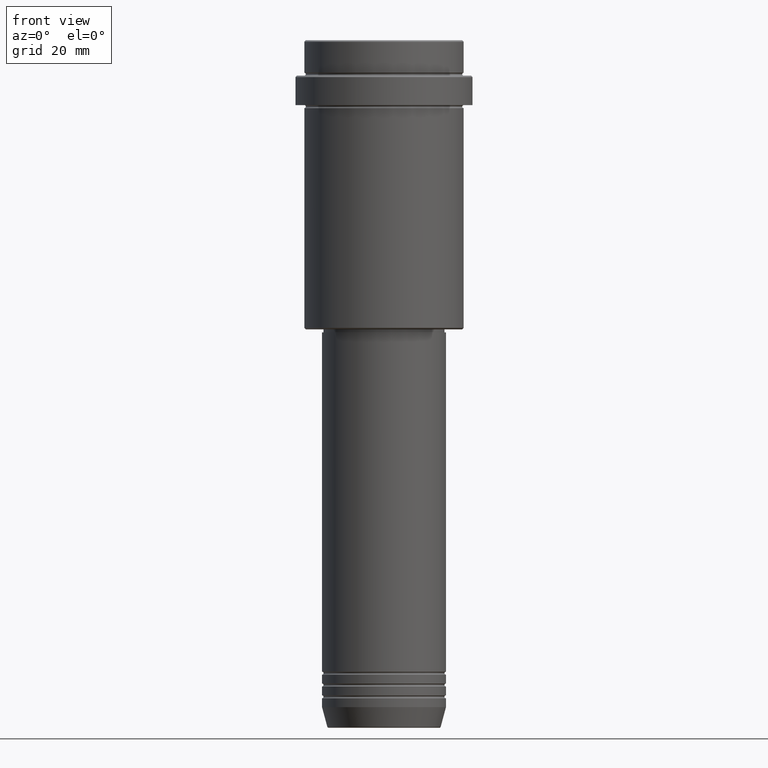
[diagram: clean part render]
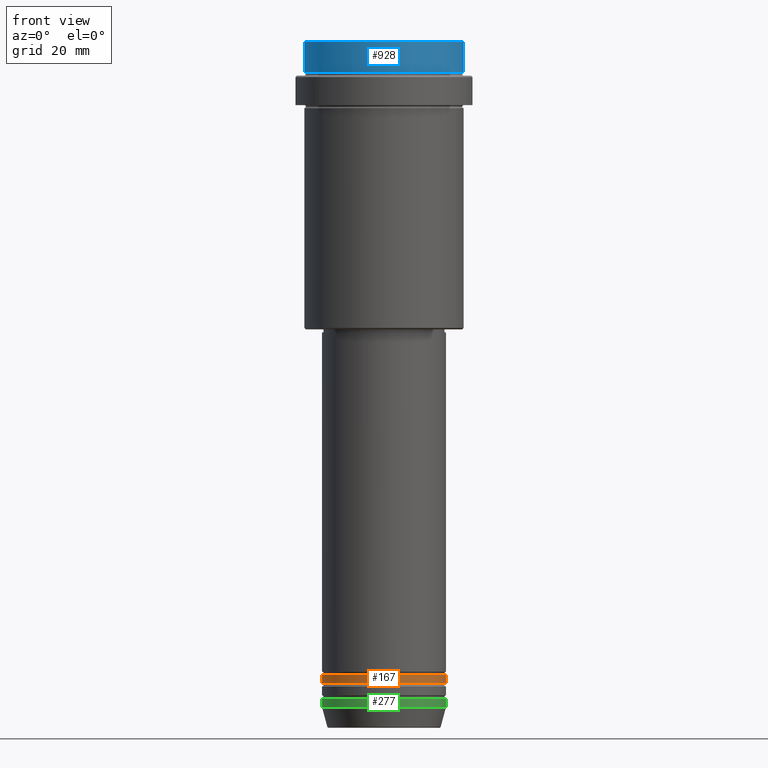
[diagram: same view with three faces highlighted in distinct colors, each labeled with its STEP entity id]
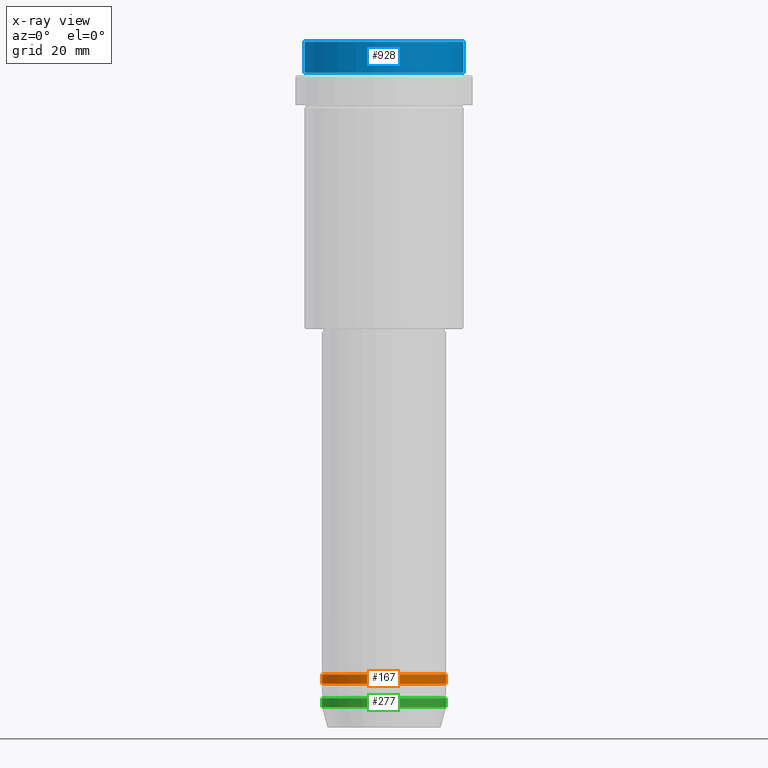
[diagram: x-ray of the same camera — body ghosted, the three highlighted faces saturated]
A machine part, front view with three faces highlighted in distinct colors.
The next image is the same camera in x-ray (body ghosted, the three faces saturated) — at least one of them is partly hidden behind the body in this view.
Their STEP definitions:

[orange] entity #167 — the highlighted cylindrical surface (partial cylindrical patch) has radius 21 mm, axis along (-0, -0, 1).
#108 = AXIS2_PLACEMENT_3D ( 'NONE', #395, #1286, #1058 ) ;
#167 = ADVANCED_FACE ( 'NONE', ( #408 ), #1376, .T. ) ;
#195 = CARTESIAN_POINT ( 'NONE',  ( 21.00000000000000000, 0.000000000000000000, -217.9999999999998579 ) ) ;
#224 = CARTESIAN_POINT ( 'NONE',  ( -21.00000000000000000, 2.571758278209441661E-15, 0.000000000000000000 ) ) ;
#245 = DIRECTION ( 'NONE',  ( -0.000000000000000000, -0.000000000000000000, 1.000000000000000000 ) ) ;
#325 = CARTESIAN_POINT ( 'NONE',  ( -21.00000000000000000, 2.571758278209441661E-15, -217.9999999999998579 ) ) ;
#345 = VECTOR ( 'NONE', #708, 1000.000000000000000 ) ;
#382 = ORIENTED_EDGE ( 'NONE', *, *, #803, .F. ) ;
#395 = CARTESIAN_POINT ( 'NONE',  ( 0.000000000000000000, 0.000000000000000000, 0.000000000000000000 ) ) ;
#408 = FACE_OUTER_BOUND ( 'NONE', #437, .T. ) ;
#424 = CARTESIAN_POINT ( 'NONE',  ( -21.00000000000000000, 2.571758278209441661E-15, -214.9999999999998579 ) ) ;
#437 = EDGE_LOOP ( 'NONE', ( #382, #1122, #902, #737 ) ) ;
#440 = LINE ( 'NONE', #224, #783 ) ;
#553 = CIRCLE ( 'NONE', #1401, 21.00000000000000000 ) ;
#598 = LINE ( 'NONE', #937, #345 ) ;
#670 = VERTEX_POINT ( 'NONE', #325 ) ;
#672 = VERTEX_POINT ( 'NONE', #767 ) ;
#708 = DIRECTION ( 'NONE',  ( -0.000000000000000000, -0.000000000000000000, 1.000000000000000000 ) ) ;
#737 = ORIENTED_EDGE ( 'NONE', *, *, #1033, .F. ) ;
#763 = CIRCLE ( 'NONE', #1235, 21.00000000000000000 ) ;
#767 = CARTESIAN_POINT ( 'NONE',  ( 21.00000000000000000, 0.000000000000000000, -214.9999999999998579 ) ) ;
#783 = VECTOR ( 'NONE', #245, 1000.000000000000000 ) ;
#803 = EDGE_CURVE ( 'NONE', #670, #1009, #440, .T. ) ;
#866 = DIRECTION ( 'NONE',  ( -0.000000000000000000, -0.000000000000000000, 1.000000000000000000 ) ) ;
#874 = DIRECTION ( 'NONE',  ( 1.000000000000000000, 0.000000000000000000, 0.000000000000000000 ) ) ;
#902 = ORIENTED_EDGE ( 'NONE', *, *, #1331, .T. ) ;
#937 = CARTESIAN_POINT ( 'NONE',  ( 21.00000000000000000, 0.000000000000000000, 0.000000000000000000 ) ) ;
#982 = DIRECTION ( 'NONE',  ( 1.000000000000000000, 0.000000000000000000, 0.000000000000000000 ) ) ;
#1009 = VERTEX_POINT ( 'NONE', #424 ) ;
#1033 = EDGE_CURVE ( 'NONE', #1009, #672, #553, .T. ) ;
#1053 = VERTEX_POINT ( 'NONE', #195 ) ;
#1058 = DIRECTION ( 'NONE',  ( 1.000000000000000000, 0.000000000000000000, 0.000000000000000000 ) ) ;
#1122 = ORIENTED_EDGE ( 'NONE', *, *, #1271, .T. ) ;
#1228 = CARTESIAN_POINT ( 'NONE',  ( 0.000000000000000000, 0.000000000000000000, -217.9999999999998579 ) ) ;
#1235 = AXIS2_PLACEMENT_3D ( 'NONE', #1228, #1318, #874 ) ;
#1271 = EDGE_CURVE ( 'NONE', #670, #1053, #763, .T. ) ;
#1286 = DIRECTION ( 'NONE',  ( -0.000000000000000000, -0.000000000000000000, 1.000000000000000000 ) ) ;
#1318 = DIRECTION ( 'NONE',  ( -0.000000000000000000, -0.000000000000000000, 1.000000000000000000 ) ) ;
#1331 = EDGE_CURVE ( 'NONE', #1053, #672, #598, .T. ) ;
#1376 = CYLINDRICAL_SURFACE ( 'NONE', #108, 21.00000000000000000 ) ;
#1401 = AXIS2_PLACEMENT_3D ( 'NONE', #1416, #866, #982 ) ;
#1416 = CARTESIAN_POINT ( 'NONE',  ( 0.000000000000000000, 0.000000000000000000, -214.9999999999998579 ) ) ;

[blue] entity #928 — the highlighted cylindrical surface (partial cylindrical patch) has radius 27 mm, axis along (-0, -0, 1).
#3 = CIRCLE ( 'NONE', #600, 26.99999999999999645 ) ;
#95 = DIRECTION ( 'NONE',  ( -0.000000000000000000, -0.000000000000000000, 1.000000000000000000 ) ) ;
#246 = CARTESIAN_POINT ( 'NONE',  ( 26.99999999999999645, 0.000000000000000000, -11.00000000000000178 ) ) ;
#263 = DIRECTION ( 'NONE',  ( -0.000000000000000000, -0.000000000000000000, 1.000000000000000000 ) ) ;
#340 = AXIS2_PLACEMENT_3D ( 'NONE', #706, #263, #398 ) ;
#355 = LINE ( 'NONE', #685, #1319 ) ;
#384 = ORIENTED_EDGE ( 'NONE', *, *, #776, .T. ) ;
#398 = DIRECTION ( 'NONE',  ( 1.000000000000000000, 0.000000000000000000, 0.000000000000000000 ) ) ;
#402 = EDGE_LOOP ( 'NONE', ( #750, #648, #833, #384 ) ) ;
#432 = DIRECTION ( 'NONE',  ( 1.000000000000000000, 0.000000000000000000, 0.000000000000000000 ) ) ;
#491 = DIRECTION ( 'NONE',  ( -0.000000000000000000, -0.000000000000000000, 1.000000000000000000 ) ) ;
#508 = DIRECTION ( 'NONE',  ( -0.000000000000000000, -0.000000000000000000, 1.000000000000000000 ) ) ;
#524 = CARTESIAN_POINT ( 'NONE',  ( -26.99999999999999645, 3.306546357697853339E-15, -11.00000000000000178 ) ) ;
#529 = EDGE_CURVE ( 'NONE', #1036, #1229, #355, .T. ) ;
#540 = VERTEX_POINT ( 'NONE', #246 ) ;
#559 = CARTESIAN_POINT ( 'NONE',  ( 0.000000000000000000, 0.000000000000000000, -0.5000000000000316414 ) ) ;
#595 = FACE_OUTER_BOUND ( 'NONE', #402, .T. ) ;
#600 = AXIS2_PLACEMENT_3D ( 'NONE', #977, #95, #432 ) ;
#612 = CYLINDRICAL_SURFACE ( 'NONE', #340, 26.99999999999999645 ) ;
#648 = ORIENTED_EDGE ( 'NONE', *, *, #1028, .T. ) ;
#675 = DIRECTION ( 'NONE',  ( 0.000000000000000000, 0.000000000000000000, -1.000000000000000000 ) ) ;
#685 = CARTESIAN_POINT ( 'NONE',  ( -26.99999999999999645, 3.306546357697853339E-15, 0.000000000000000000 ) ) ;
#706 = CARTESIAN_POINT ( 'NONE',  ( 0.000000000000000000, 0.000000000000000000, 0.000000000000000000 ) ) ;
#750 = ORIENTED_EDGE ( 'NONE', *, *, #529, .F. ) ;
#776 = EDGE_CURVE ( 'NONE', #1360, #1229, #843, .T. ) ;
#802 = DIRECTION ( 'NONE',  ( 1.000000000000000000, 0.000000000000000000, 0.000000000000000000 ) ) ;
#833 = ORIENTED_EDGE ( 'NONE', *, *, #835, .T. ) ;
#835 = EDGE_CURVE ( 'NONE', #540, #1360, #909, .T. ) ;
#843 = CIRCLE ( 'NONE', #965, 26.99999999999999645 ) ;
#909 = LINE ( 'NONE', #1240, #966 ) ;
#928 = ADVANCED_FACE ( 'NONE', ( #595 ), #612, .T. ) ;
#965 = AXIS2_PLACEMENT_3D ( 'NONE', #559, #675, #802 ) ;
#966 = VECTOR ( 'NONE', #491, 1000.000000000000000 ) ;
#977 = CARTESIAN_POINT ( 'NONE',  ( 0.000000000000000000, 0.000000000000000000, -11.00000000000000178 ) ) ;
#1028 = EDGE_CURVE ( 'NONE', #1036, #540, #3, .T. ) ;
#1036 = VERTEX_POINT ( 'NONE', #524 ) ;
#1229 = VERTEX_POINT ( 'NONE', #1325 ) ;
#1240 = CARTESIAN_POINT ( 'NONE',  ( 26.99999999999999645, 0.000000000000000000, 0.000000000000000000 ) ) ;
#1246 = CARTESIAN_POINT ( 'NONE',  ( 26.99999999999999645, 0.000000000000000000, -0.5000000000000316414 ) ) ;
#1319 = VECTOR ( 'NONE', #508, 1000.000000000000000 ) ;
#1325 = CARTESIAN_POINT ( 'NONE',  ( -26.99999999999999645, 3.306546357697853339E-15, -0.5000000000000316414 ) ) ;
#1360 = VERTEX_POINT ( 'NONE', #1246 ) ;

[green] entity #277 — the highlighted cylindrical surface (partial cylindrical patch) has radius 21 mm, axis along (-0, -0, 1).
#66 = VERTEX_POINT ( 'NONE', #585 ) ;
#93 = CARTESIAN_POINT ( 'NONE',  ( 21.00000000000000000, 0.000000000000000000, -222.9999999999999716 ) ) ;
#112 = DIRECTION ( 'NONE',  ( -0.000000000000000000, -0.000000000000000000, 1.000000000000000000 ) ) ;
#200 = VERTEX_POINT ( 'NONE', #1078 ) ;
#203 = VERTEX_POINT ( 'NONE', #93 ) ;
#215 = CARTESIAN_POINT ( 'NONE',  ( 0.000000000000000000, 0.000000000000000000, -222.9999999999999716 ) ) ;
#270 = CIRCLE ( 'NONE', #1209, 21.00000000000000000 ) ;
#277 = ADVANCED_FACE ( 'NONE', ( #1315 ), #333, .T. ) ;
#304 = AXIS2_PLACEMENT_3D ( 'NONE', #442, #427, #328 ) ;
#328 = DIRECTION ( 'NONE',  ( 1.000000000000000000, 0.000000000000000000, 0.000000000000000000 ) ) ;
#333 = CYLINDRICAL_SURFACE ( 'NONE', #304, 21.00000000000000000 ) ;
#361 = CARTESIAN_POINT ( 'NONE',  ( -21.00000000000000000, 2.571758278209441661E-15, 0.000000000000000000 ) ) ;
#377 = CARTESIAN_POINT ( 'NONE',  ( 0.000000000000000000, 0.000000000000000000, -225.9999999999999716 ) ) ;
#390 = VECTOR ( 'NONE', #1176, 1000.000000000000000 ) ;
#427 = DIRECTION ( 'NONE',  ( -0.000000000000000000, -0.000000000000000000, 1.000000000000000000 ) ) ;
#442 = CARTESIAN_POINT ( 'NONE',  ( 0.000000000000000000, 0.000000000000000000, 0.000000000000000000 ) ) ;
#492 = EDGE_CURVE ( 'NONE', #963, #66, #1160, .T. ) ;
#494 = EDGE_LOOP ( 'NONE', ( #853, #1109, #1293, #1081 ) ) ;
#542 = DIRECTION ( 'NONE',  ( 1.000000000000000000, 0.000000000000000000, 0.000000000000000000 ) ) ;
#585 = CARTESIAN_POINT ( 'NONE',  ( -21.00000000000000000, 2.571758278209441661E-15, -222.9999999999999716 ) ) ;
#590 = EDGE_CURVE ( 'NONE', #200, #203, #1285, .T. ) ;
#669 = EDGE_CURVE ( 'NONE', #66, #203, #1232, .T. ) ;
#713 = AXIS2_PLACEMENT_3D ( 'NONE', #215, #112, #542 ) ;
#816 = DIRECTION ( 'NONE',  ( -0.000000000000000000, -0.000000000000000000, 1.000000000000000000 ) ) ;
#853 = ORIENTED_EDGE ( 'NONE', *, *, #492, .F. ) ;
#963 = VERTEX_POINT ( 'NONE', #1163 ) ;
#999 = EDGE_CURVE ( 'NONE', #963, #200, #270, .T. ) ;
#1072 = VECTOR ( 'NONE', #1380, 1000.000000000000000 ) ;
#1078 = CARTESIAN_POINT ( 'NONE',  ( 21.00000000000000000, 0.000000000000000000, -225.9999999999999716 ) ) ;
#1081 = ORIENTED_EDGE ( 'NONE', *, *, #669, .F. ) ;
#1109 = ORIENTED_EDGE ( 'NONE', *, *, #999, .T. ) ;
#1160 = LINE ( 'NONE', #361, #1072 ) ;
#1163 = CARTESIAN_POINT ( 'NONE',  ( -21.00000000000000000, 2.571758278209441661E-15, -225.9999999999999716 ) ) ;
#1176 = DIRECTION ( 'NONE',  ( -0.000000000000000000, -0.000000000000000000, 1.000000000000000000 ) ) ;
#1181 = CARTESIAN_POINT ( 'NONE',  ( 21.00000000000000000, 0.000000000000000000, 0.000000000000000000 ) ) ;
#1209 = AXIS2_PLACEMENT_3D ( 'NONE', #377, #816, #1274 ) ;
#1232 = CIRCLE ( 'NONE', #713, 21.00000000000000000 ) ;
#1274 = DIRECTION ( 'NONE',  ( 1.000000000000000000, 0.000000000000000000, 0.000000000000000000 ) ) ;
#1285 = LINE ( 'NONE', #1181, #390 ) ;
#1293 = ORIENTED_EDGE ( 'NONE', *, *, #590, .T. ) ;
#1315 = FACE_OUTER_BOUND ( 'NONE', #494, .T. ) ;
#1380 = DIRECTION ( 'NONE',  ( -0.000000000000000000, -0.000000000000000000, 1.000000000000000000 ) ) ;